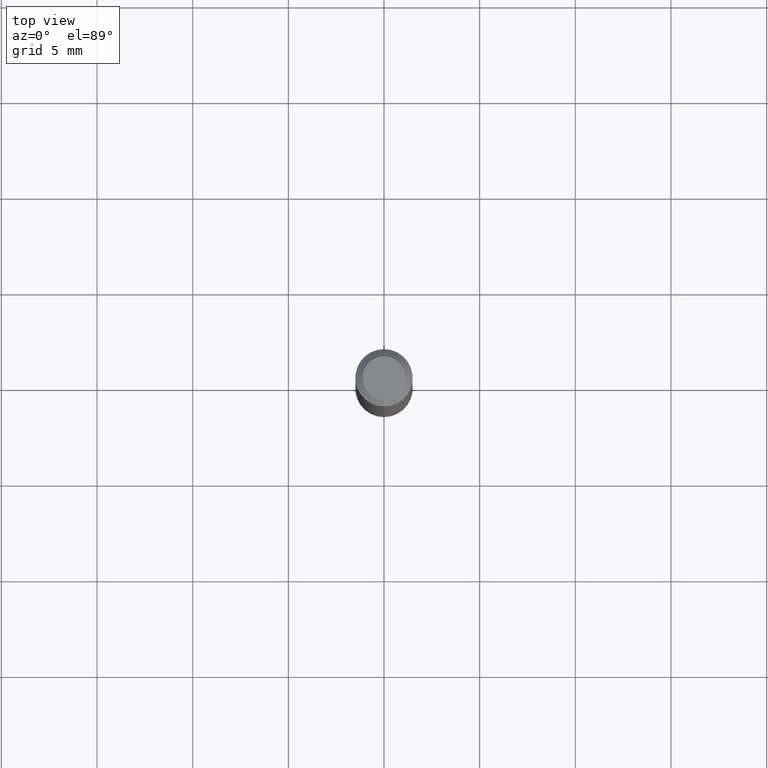
[diagram: clean part render]
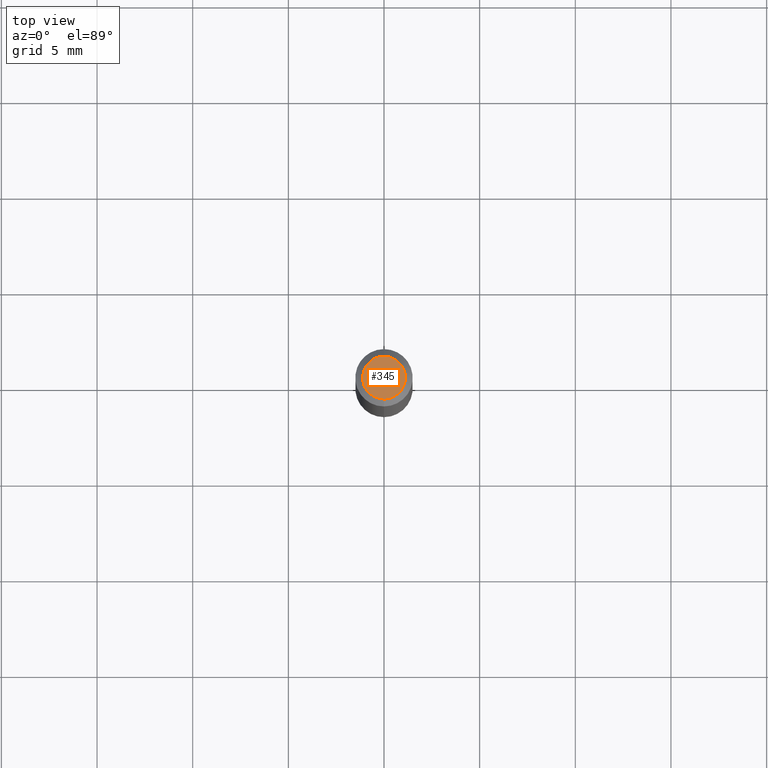
[diagram: same view with one face highlighted and labeled with its STEP entity id]
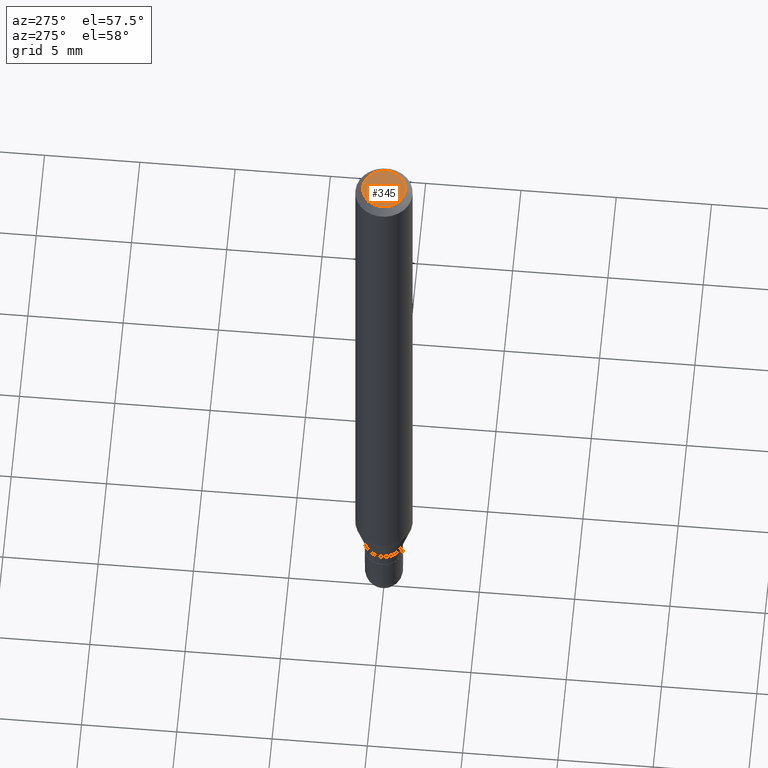
[diagram: same view with one face highlighted and labeled with its STEP entity id]
A machine part, top view. The second image highlights one B-rep face of the part: STEP entity #345.
A second angle (auxiliary view) of the same face is appended — the face is thin or edge-on in the first view.
In plain terms, the highlighted planar face has unit normal (0, -0, -1).
Its self-contained STEP definition (entity closure, byte-faithful):
#3 = AXIS2_PLACEMENT_3D ( 'NONE', #427, #500, #144 ) ;
#8 = CIRCLE ( 'NONE', #292, 0.04404999999999999888 ) ;
#27 = CARTESIAN_POINT ( 'NONE',  ( 2.241566850932911875E-45, -3.200435394043974313E-31, -9.166308008539417533E-17 ) ) ;
#36 = VERTEX_POINT ( 'NONE', #293 ) ;
#120 = ORIENTED_EDGE ( 'NONE', *, *, #486, .T. ) ;
#133 = PLANE ( 'NONE',  #3 ) ;
#135 = DIRECTION ( 'NONE',  ( -6.982962677686265133E-15, -1.000000000000000000, 3.491520676658932142E-15 ) ) ;
#141 = CARTESIAN_POINT ( 'NONE',  ( 2.241566850932911875E-45, -3.200435394043974313E-31, -9.166308008539417533E-17 ) ) ;
#144 = DIRECTION ( 'NONE',  ( 6.982962677686265922E-15, 1.000000000000000000, -3.491520676658932931E-15 ) ) ;
#203 = FACE_OUTER_BOUND ( 'NONE', #364, .T. ) ;
#224 = DIRECTION ( 'NONE',  ( -2.445441336735190408E-29, 3.491520676658932537E-15, 1.000000000000000000 ) ) ;
#241 = AXIS2_PLACEMENT_3D ( 'NONE', #141, #509, #300 ) ;
#258 = CIRCLE ( 'NONE', #241, 0.04404999999999999888 ) ;
#285 = VERTEX_POINT ( 'NONE', #316 ) ;
#292 = AXIS2_PLACEMENT_3D ( 'NONE', #27, #224, #135 ) ;
#293 = CARTESIAN_POINT ( 'NONE',  ( -3.536586717851222218E-16, -0.04404999999999999888, 6.213840572143178795E-17 ) ) ;
#300 = DIRECTION ( 'NONE',  ( -6.982962677686265133E-15, -1.000000000000000000, 3.491520676658932142E-15 ) ) ;
#316 = CARTESIAN_POINT ( 'NONE',  ( 3.599717260347271507E-16, 0.04404999999999999888, -2.454645658922201879E-16 ) ) ;
#345 = ADVANCED_FACE ( 'NONE', ( #203 ), #133, .F. ) ;
#364 = EDGE_LOOP ( 'NONE', ( #443, #120 ) ) ;
#427 = CARTESIAN_POINT ( 'NONE',  ( 3.075995059520799729E-16, 0.04404999999999999888, -1.996330258495230756E-16 ) ) ;
#443 = ORIENTED_EDGE ( 'NONE', *, *, #504, .T. ) ;
#486 = EDGE_CURVE ( 'NONE', #36, #285, #258, .T. ) ;
#500 = DIRECTION ( 'NONE',  ( 2.445441336735189847E-29, -3.491520676658932931E-15, -1.000000000000000000 ) ) ;
#504 = EDGE_CURVE ( 'NONE', #285, #36, #8, .T. ) ;
#509 = DIRECTION ( 'NONE',  ( -2.445441336735190408E-29, 3.491520676658932537E-15, 1.000000000000000000 ) ) ;